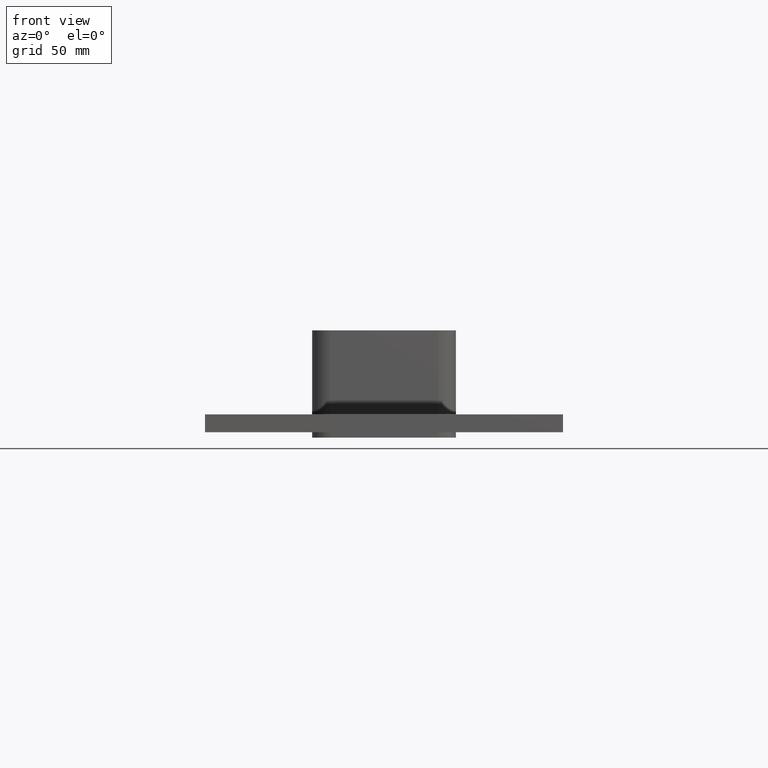
[diagram: clean part render]
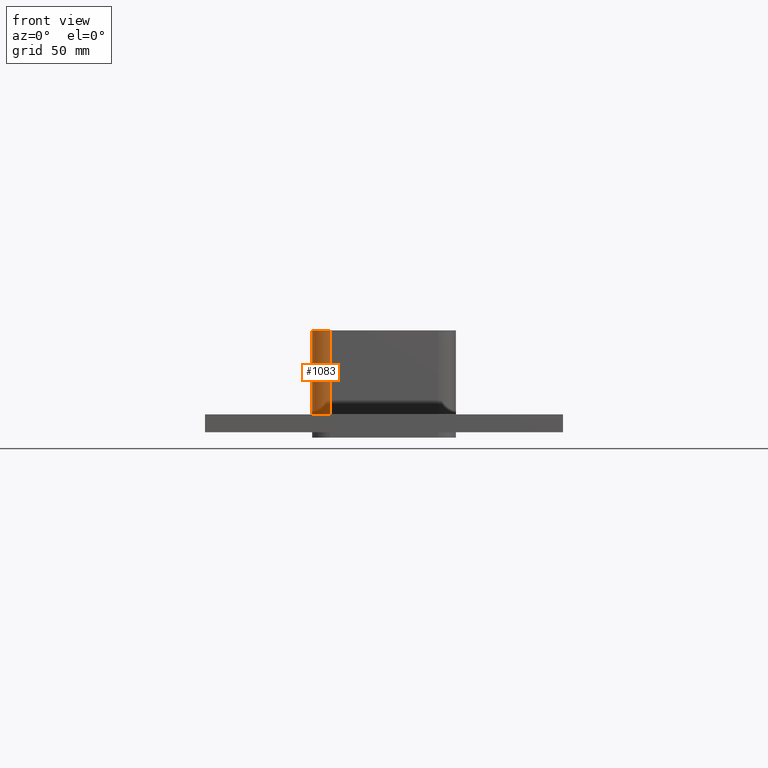
[diagram: same view with one face highlighted and labeled with its STEP entity id]
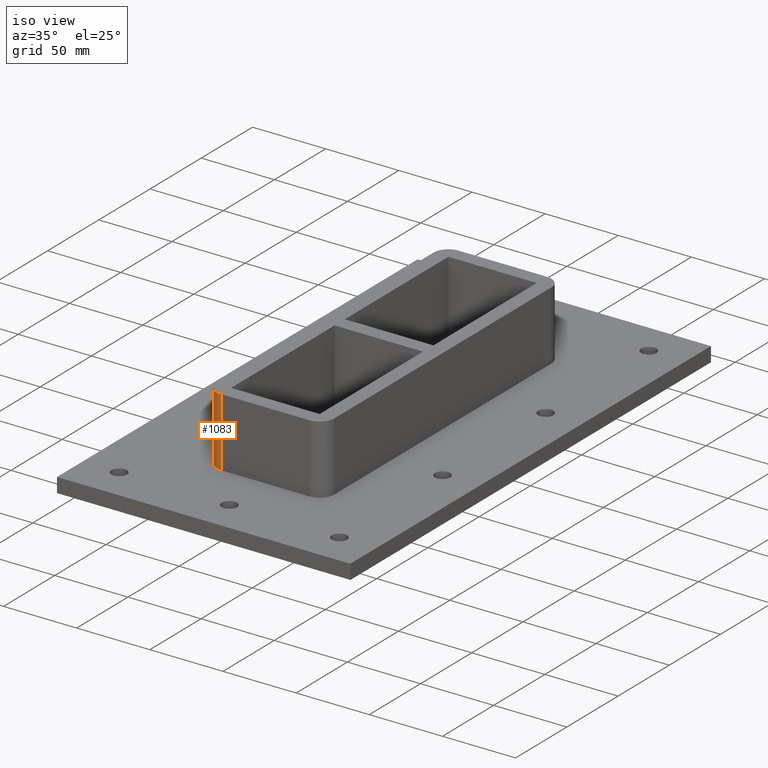
[diagram: same view with one face highlighted and labeled with its STEP entity id]
A machine part, front view. The second image highlights one B-rep face of the part: STEP entity #1083.
A second angle (iso view) of the same face is appended — the face is thin or edge-on in the first view.
In plain terms, the highlighted cylindrical surface (edge-blend (fillet) strip) has radius 10 mm, axis along (0, 0, -1).
Its self-contained STEP definition (entity closure, byte-faithful):
#541=CARTESIAN_POINT('',(-30.249999999999989,-116.00000000000001,-17.0));
#542=VERTEX_POINT('',#541);
#549=CARTESIAN_POINT('',(-40.25,-106.00000000000001,-17.0));
#550=VERTEX_POINT('',#549);
#551=CARTESIAN_POINT('',(-30.249999999999989,-105.99999999999994,-17.0));
#552=DIRECTION('',(0.0,0.0,1.0));
#553=DIRECTION('',(-0.707106781186547,-0.707106781186548,0.0));
#554=AXIS2_PLACEMENT_3D('',#551,#552,#553);
#555=CIRCLE('',#554,9.999999999999998);
#556=EDGE_CURVE('',#550,#542,#555,.T.);
#1042=CARTESIAN_POINT('',(-30.249999999999989,-115.99999999999994,30.0));
#1043=VERTEX_POINT('',#1042);
#1050=CARTESIAN_POINT('',(-30.249999999999989,-115.99999999999994,-17.0));
#1051=DIRECTION('',(0.0,0.0,1.0));
#1052=VECTOR('',#1051,47.0);
#1053=LINE('',#1050,#1052);
#1054=EDGE_CURVE('',#542,#1043,#1053,.T.);
#1059=CARTESIAN_POINT('',(-30.249999999999989,-105.99999999999994,0.0));
#1060=DIRECTION('',(0.0,0.0,-1.0));
#1061=DIRECTION('',(-0.707106781186547,-0.707106781186548,0.0));
#1062=AXIS2_PLACEMENT_3D('',#1059,#1060,#1061);
#1063=CYLINDRICAL_SURFACE('',#1062,10.0);
#1064=ORIENTED_EDGE('',*,*,#556,.T.);
#1065=ORIENTED_EDGE('',*,*,#1054,.T.);
#1066=CARTESIAN_POINT('',(-40.249999999999986,-105.99999999999996,30.0));
#1067=VERTEX_POINT('',#1066);
#1068=CARTESIAN_POINT('',(-30.249999999999989,-105.99999999999994,30.0));
#1069=DIRECTION('',(0.0,0.0,-1.0));
#1070=DIRECTION('',(-0.707106781186547,-0.707106781186548,0.0));
#1071=AXIS2_PLACEMENT_3D('',#1068,#1069,#1070);
#1072=CIRCLE('',#1071,9.999999999999998);
#1073=EDGE_CURVE('',#1043,#1067,#1072,.T.);
#1074=ORIENTED_EDGE('',*,*,#1073,.T.);
#1075=CARTESIAN_POINT('',(-40.249999999999986,-105.99999999999994,30.0));
#1076=DIRECTION('',(0.0,0.0,-1.0));
#1077=VECTOR('',#1076,47.0);
#1078=LINE('',#1075,#1077);
#1079=EDGE_CURVE('',#1067,#550,#1078,.T.);
#1080=ORIENTED_EDGE('',*,*,#1079,.T.);
#1081=EDGE_LOOP('',(#1064,#1065,#1074,#1080));
#1082=FACE_OUTER_BOUND('',#1081,.T.);
#1083=ADVANCED_FACE('',(#1082),#1063,.T.);